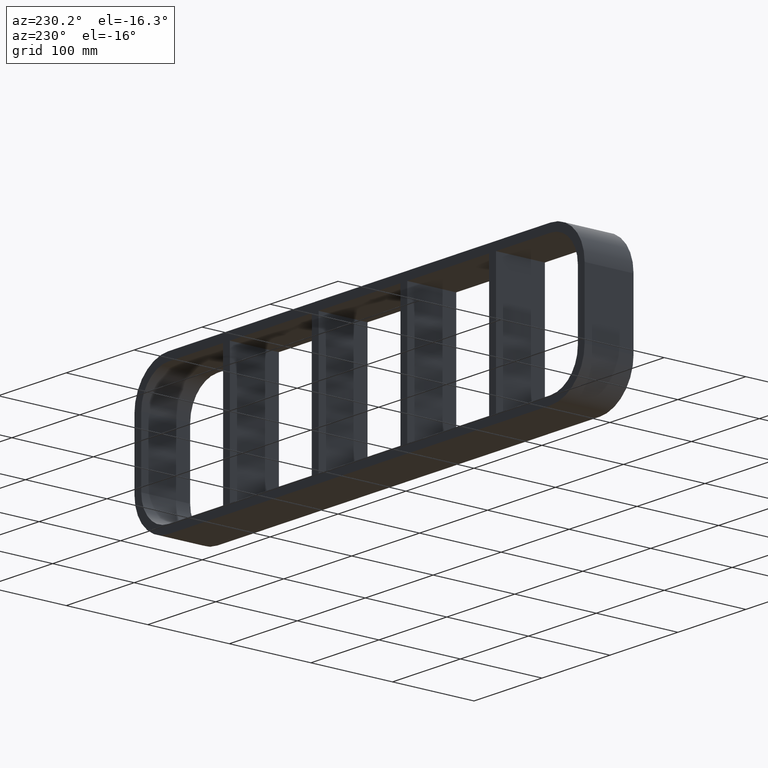
[diagram: clean part render]
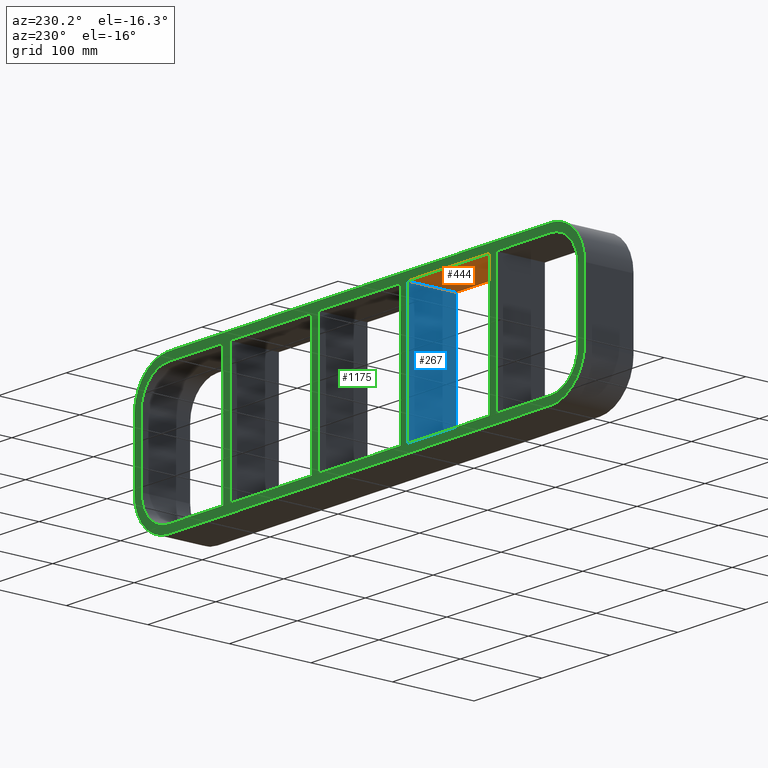
[diagram: same view with three faces highlighted in distinct colors, each labeled with its STEP entity id]
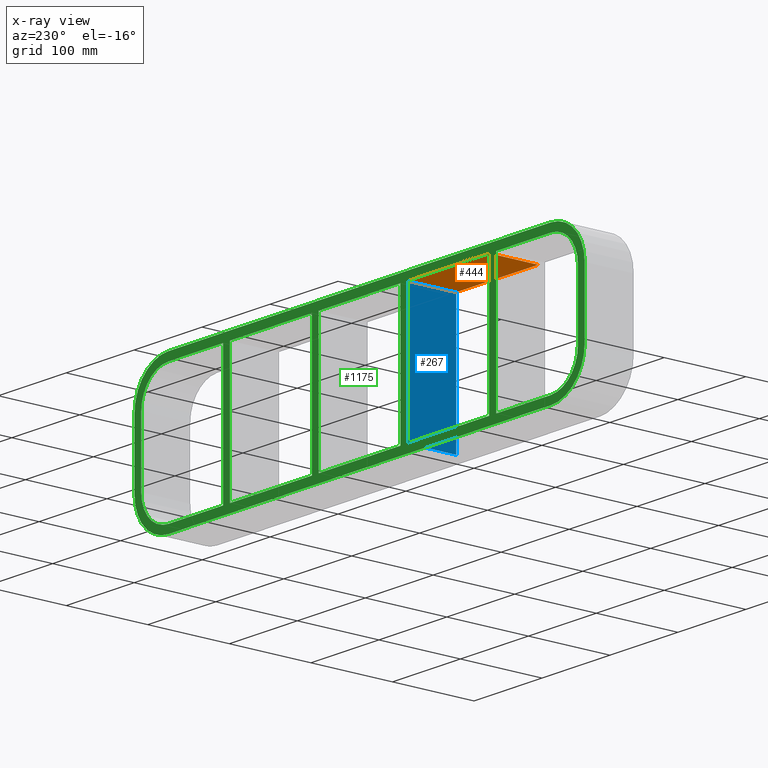
[diagram: x-ray of the same camera — body ghosted, the three highlighted faces saturated]
A machine part, auxiliary view with three faces highlighted in distinct colors.
The next image is the same camera in x-ray (body ghosted, the three faces saturated) — at least one of them is partly hidden behind the body in this view.
Their STEP definitions:

[orange] entity #444 — the highlighted planar face has unit normal (0, 0, 1).
#235=CARTESIAN_POINT('',(-70.250000000001506,-3.0,79.750000000000014));
#236=VERTEX_POINT('',#235);
#243=CARTESIAN_POINT('',(-70.250000000001506,57.0,79.750000000000014));
#244=VERTEX_POINT('',#243);
#245=CARTESIAN_POINT('',(-70.250000000001492,57.000000000000007,79.750000000000014));
#246=DIRECTION('',(0.0,-1.0,0.0));
#247=VECTOR('',#246,60.000000000000007);
#248=LINE('',#245,#247);
#249=EDGE_CURVE('',#244,#236,#248,.T.);
#414=CARTESIAN_POINT('',(-321.25,0.0,79.750000000000014));
#415=DIRECTION('',(0.0,0.0,1.0));
#416=DIRECTION('',(1.0,0.0,0.0));
#417=AXIS2_PLACEMENT_3D('',#414,#415,#416);
#418=PLANE('',#417);
#419=ORIENTED_EDGE('',*,*,#249,.T.);
#420=CARTESIAN_POINT('',(-190.75000000000728,-3.0,79.750000000000014));
#421=VERTEX_POINT('',#420);
#422=CARTESIAN_POINT('',(-190.75000000000728,-3.0,79.750000000000014));
#423=DIRECTION('',(1.0,0.0,0.0));
#424=VECTOR('',#423,120.50000000000577);
#425=LINE('',#422,#424);
#426=EDGE_CURVE('',#421,#236,#425,.T.);
#427=ORIENTED_EDGE('',*,*,#426,.F.);
#428=CARTESIAN_POINT('',(-190.75000000000728,57.0,79.750000000000014));
#429=VERTEX_POINT('',#428);
#430=CARTESIAN_POINT('',(-190.75000000000728,-3.0,79.750000000000014));
#431=DIRECTION('',(0.0,1.0,0.0));
#432=VECTOR('',#431,60.000000000000007);
#433=LINE('',#430,#432);
#434=EDGE_CURVE('',#421,#429,#433,.T.);
#435=ORIENTED_EDGE('',*,*,#434,.T.);
#436=CARTESIAN_POINT('',(-70.250000000001506,57.0,79.750000000000014));
#437=DIRECTION('',(-1.0,0.0,0.0));
#438=VECTOR('',#437,120.50000000000577);
#439=LINE('',#436,#438);
#440=EDGE_CURVE('',#244,#429,#439,.T.);
#441=ORIENTED_EDGE('',*,*,#440,.F.);
#442=EDGE_LOOP('',(#419,#427,#435,#441));
#443=FACE_OUTER_BOUND('',#442,.T.);
#444=ADVANCED_FACE('',(#443),#418,.F.);

[blue] entity #267 — the highlighted planar face has unit normal (-1, 0, 0).
#228=CARTESIAN_POINT('',(-70.250000000001506,-3.0,-79.750000000000014));
#229=DIRECTION('',(-1.0,0.0,0.0));
#230=DIRECTION('',(0.0,0.0,1.0));
#231=AXIS2_PLACEMENT_3D('',#228,#229,#230);
#232=PLANE('',#231);
#233=CARTESIAN_POINT('',(-70.250000000001506,-3.0,-79.750000000000014));
#234=VERTEX_POINT('',#233);
#235=CARTESIAN_POINT('',(-70.250000000001506,-3.0,79.750000000000014));
#236=VERTEX_POINT('',#235);
#237=CARTESIAN_POINT('',(-70.250000000001506,-3.0,-79.750000000000014));
#238=DIRECTION('',(0.0,0.0,1.0));
#239=VECTOR('',#238,159.50000000000003);
#240=LINE('',#237,#239);
#241=EDGE_CURVE('',#234,#236,#240,.T.);
#242=ORIENTED_EDGE('',*,*,#241,.T.);
#243=CARTESIAN_POINT('',(-70.250000000001506,57.0,79.750000000000014));
#244=VERTEX_POINT('',#243);
#245=CARTESIAN_POINT('',(-70.250000000001492,57.000000000000007,79.750000000000014));
#246=DIRECTION('',(0.0,-1.0,0.0));
#247=VECTOR('',#246,60.000000000000007);
#248=LINE('',#245,#247);
#249=EDGE_CURVE('',#244,#236,#248,.T.);
#250=ORIENTED_EDGE('',*,*,#249,.F.);
#251=CARTESIAN_POINT('',(-70.250000000001506,57.0,-79.750000000000014));
#252=VERTEX_POINT('',#251);
#253=CARTESIAN_POINT('',(-70.250000000001506,57.0,-79.750000000000014));
#254=DIRECTION('',(0.0,0.0,1.0));
#255=VECTOR('',#254,159.50000000000003);
#256=LINE('',#253,#255);
#257=EDGE_CURVE('',#252,#244,#256,.T.);
#258=ORIENTED_EDGE('',*,*,#257,.F.);
#259=CARTESIAN_POINT('',(-70.250000000001492,-3.0,-79.750000000000014));
#260=DIRECTION('',(0.0,1.0,0.0));
#261=VECTOR('',#260,60.000000000000007);
#262=LINE('',#259,#261);
#263=EDGE_CURVE('',#234,#252,#262,.T.);
#264=ORIENTED_EDGE('',*,*,#263,.F.);
#265=EDGE_LOOP('',(#242,#250,#258,#264));
#266=FACE_OUTER_BOUND('',#265,.T.);
#267=ADVANCED_FACE('',(#266),#232,.T.);

[green] entity #1175 — the highlighted planar face has unit normal (0, 1, 0).
#83=CARTESIAN_POINT('',(190.74999999999852,57.0,79.750000000000014));
#84=VERTEX_POINT('',#83);
#91=CARTESIAN_POINT('',(190.74999999999852,57.0,-79.750000000000014));
#92=VERTEX_POINT('',#91);
#93=CARTESIAN_POINT('',(190.74999999999852,57.0,-79.750000000000014));
#94=DIRECTION('',(0.0,0.0,1.0));
#95=VECTOR('',#94,159.50000000000003);
#96=LINE('',#93,#95);
#97=EDGE_CURVE('',#92,#84,#96,.T.);
#123=CARTESIAN_POINT('',(200.74999999999278,57.0,-79.749999999985107));
#124=VERTEX_POINT('',#123);
#131=CARTESIAN_POINT('',(200.74999999999278,57.0,79.750000000000014));
#132=VERTEX_POINT('',#131);
#133=CARTESIAN_POINT('',(200.74999999999278,57.0,79.750000000000014));
#134=DIRECTION('',(0.0,0.0,-1.0));
#135=VECTOR('',#134,159.49999999998514);
#136=LINE('',#133,#135);
#137=EDGE_CURVE('',#132,#124,#136,.T.);
#163=CARTESIAN_POINT('',(60.249999999998494,57.0,79.750000000000014));
#164=VERTEX_POINT('',#163);
#171=CARTESIAN_POINT('',(60.249999999998494,57.0,-79.750000000000014));
#172=VERTEX_POINT('',#171);
#173=CARTESIAN_POINT('',(60.249999999998494,57.0,-79.750000000000014));
#174=DIRECTION('',(0.0,0.0,1.0));
#175=VECTOR('',#174,159.50000000000003);
#176=LINE('',#173,#175);
#177=EDGE_CURVE('',#172,#164,#176,.T.);
#203=CARTESIAN_POINT('',(70.249999999992738,57.0,-79.749999999985107));
#204=VERTEX_POINT('',#203);
#211=CARTESIAN_POINT('',(70.249999999992738,57.0,79.750000000000014));
#212=VERTEX_POINT('',#211);
#213=CARTESIAN_POINT('',(70.249999999992738,57.0,79.750000000000014));
#214=DIRECTION('',(0.0,0.0,-1.0));
#215=VECTOR('',#214,159.49999999998514);
#216=LINE('',#213,#215);
#217=EDGE_CURVE('',#212,#204,#216,.T.);
#243=CARTESIAN_POINT('',(-70.250000000001506,57.0,79.750000000000014));
#244=VERTEX_POINT('',#243);
#251=CARTESIAN_POINT('',(-70.250000000001506,57.0,-79.750000000000014));
#252=VERTEX_POINT('',#251);
#253=CARTESIAN_POINT('',(-70.250000000001506,57.0,-79.750000000000014));
#254=DIRECTION('',(0.0,0.0,1.0));
#255=VECTOR('',#254,159.50000000000003);
#256=LINE('',#253,#255);
#257=EDGE_CURVE('',#252,#244,#256,.T.);
#283=CARTESIAN_POINT('',(-60.250000000007269,57.0,-79.749999999985107));
#284=VERTEX_POINT('',#283);
#291=CARTESIAN_POINT('',(-60.250000000007269,57.0,79.750000000000014));
#292=VERTEX_POINT('',#291);
#293=CARTESIAN_POINT('',(-60.250000000007269,57.0,79.750000000000014));
#294=DIRECTION('',(0.0,0.0,-1.0));
#295=VECTOR('',#294,159.49999999998514);
#296=LINE('',#293,#295);
#297=EDGE_CURVE('',#292,#284,#296,.T.);
#314=CARTESIAN_POINT('',(-190.75000000000728,57.0,-79.749999999985107));
#315=VERTEX_POINT('',#314);
#316=CARTESIAN_POINT('',(-190.75000000000728,57.0,-79.750000000000014));
#317=DIRECTION('',(1.0,0.0,0.0));
#318=VECTOR('',#317,120.50000000000577);
#319=LINE('',#316,#318);
#320=EDGE_CURVE('',#315,#252,#319,.T.);
#345=CARTESIAN_POINT('',(-60.250000000007276,57.0,-79.750000000000014));
#346=DIRECTION('',(1.0,0.0,0.0));
#347=VECTOR('',#346,120.50000000000577);
#348=LINE('',#345,#347);
#349=EDGE_CURVE('',#284,#172,#348,.T.);
#367=CARTESIAN_POINT('',(70.249999999992738,57.0,-79.750000000000014));
#368=DIRECTION('',(1.0,0.0,0.0));
#369=VECTOR('',#368,120.50000000000578);
#370=LINE('',#367,#369);
#371=EDGE_CURVE('',#204,#92,#370,.T.);
#397=CARTESIAN_POINT('',(281.25,57.0,-79.750000000000014));
#398=VERTEX_POINT('',#397);
#405=CARTESIAN_POINT('',(200.74999999999278,57.0,-79.750000000000014));
#406=DIRECTION('',(1.0,0.0,0.0));
#407=VECTOR('',#406,80.500000000007219);
#408=LINE('',#405,#407);
#409=EDGE_CURVE('',#124,#398,#408,.T.);
#428=CARTESIAN_POINT('',(-190.75000000000728,57.0,79.750000000000014));
#429=VERTEX_POINT('',#428);
#436=CARTESIAN_POINT('',(-70.250000000001506,57.0,79.750000000000014));
#437=DIRECTION('',(-1.0,0.0,0.0));
#438=VECTOR('',#437,120.50000000000577);
#439=LINE('',#436,#438);
#440=EDGE_CURVE('',#244,#429,#439,.T.);
#458=CARTESIAN_POINT('',(60.249999999998494,57.0,79.750000000000014));
#459=DIRECTION('',(-1.0,0.0,0.0));
#460=VECTOR('',#459,120.50000000000577);
#461=LINE('',#458,#460);
#462=EDGE_CURVE('',#164,#292,#461,.T.);
#473=CARTESIAN_POINT('',(281.25,57.0,79.750000000000014));
#474=VERTEX_POINT('',#473);
#475=CARTESIAN_POINT('',(281.25,57.0,79.750000000000014));
#476=DIRECTION('',(-1.0,0.0,0.0));
#477=VECTOR('',#476,80.500000000007219);
#478=LINE('',#475,#477);
#479=EDGE_CURVE('',#474,#132,#478,.T.);
#511=CARTESIAN_POINT('',(190.74999999999852,57.0,79.750000000000014));
#512=DIRECTION('',(-1.0,0.0,0.0));
#513=VECTOR('',#512,120.5000000000058);
#514=LINE('',#511,#513);
#515=EDGE_CURVE('',#84,#212,#514,.T.);
#535=CARTESIAN_POINT('',(-200.75000000000153,57.0,79.750000000000014));
#536=VERTEX_POINT('',#535);
#543=CARTESIAN_POINT('',(-200.75000000000153,57.0,-79.750000000000014));
#544=VERTEX_POINT('',#543);
#545=CARTESIAN_POINT('',(-200.75000000000153,57.0,-79.750000000000014));
#546=DIRECTION('',(0.0,0.0,1.0));
#547=VECTOR('',#546,159.50000000000003);
#548=LINE('',#545,#547);
#549=EDGE_CURVE('',#544,#536,#548,.T.);
#572=CARTESIAN_POINT('',(-190.75000000000728,57.0,79.750000000000014));
#573=DIRECTION('',(0.0,0.0,-1.0));
#574=VECTOR('',#573,159.49999999998514);
#575=LINE('',#572,#574);
#576=EDGE_CURVE('',#429,#315,#575,.T.);
#588=CARTESIAN_POINT('',(-281.25,57.0,-79.750000000000014));
#589=VERTEX_POINT('',#588);
#590=CARTESIAN_POINT('',(-281.25,57.0,-79.750000000000014));
#591=DIRECTION('',(1.0,0.0,0.0));
#592=VECTOR('',#591,80.499999999998465);
#593=LINE('',#590,#592);
#594=EDGE_CURVE('',#589,#544,#593,.T.);
#627=CARTESIAN_POINT('',(-281.25,57.0,79.750000000000014));
#628=VERTEX_POINT('',#627);
#635=CARTESIAN_POINT('',(-200.75000000000153,57.0,79.750000000000014));
#636=DIRECTION('',(-1.0,0.0,0.0));
#637=VECTOR('',#636,80.499999999998465);
#638=LINE('',#635,#637);
#639=EDGE_CURVE('',#536,#628,#638,.T.);
#649=CARTESIAN_POINT('',(281.25,57.0,-89.750000000000014));
#650=VERTEX_POINT('',#649);
#651=CARTESIAN_POINT('',(331.25,57.0,-39.750000000000014));
#652=VERTEX_POINT('',#651);
#653=CARTESIAN_POINT('',(281.25,57.0,-39.750000000000014));
#654=DIRECTION('',(0.0,-1.0,0.0));
#655=DIRECTION('',(0.707106781186547,0.0,-0.707106781186547));
#656=AXIS2_PLACEMENT_3D('',#653,#654,#655);
#657=CIRCLE('',#656,49.999999999999986);
#658=EDGE_CURVE('',#650,#652,#657,.T.);
#834=CARTESIAN_POINT('',(331.25,57.0,39.750000000000014));
#835=VERTEX_POINT('',#834);
#836=CARTESIAN_POINT('',(331.25,57.0,39.750000000000014));
#837=DIRECTION('',(0.0,0.0,-1.0));
#838=VECTOR('',#837,79.500000000000028);
#839=LINE('',#836,#838);
#840=EDGE_CURVE('',#835,#652,#839,.T.);
#859=CARTESIAN_POINT('',(281.25,57.0,89.750000000000014));
#860=VERTEX_POINT('',#859);
#861=CARTESIAN_POINT('',(281.25,57.0,39.750000000000014));
#862=DIRECTION('',(0.0,-1.0,0.0));
#863=DIRECTION('',(0.707106781186547,0.0,0.707106781186547));
#864=AXIS2_PLACEMENT_3D('',#861,#862,#863);
#865=CIRCLE('',#864,49.999999999999986);
#866=EDGE_CURVE('',#835,#860,#865,.T.);
#882=CARTESIAN_POINT('',(-331.25,57.0,-39.750000000000014));
#883=VERTEX_POINT('',#882);
#884=CARTESIAN_POINT('',(-281.25,57.0,-89.750000000000014));
#885=VERTEX_POINT('',#884);
#886=CARTESIAN_POINT('',(-281.25,57.0,-39.750000000000014));
#887=DIRECTION('',(0.0,-1.0,0.0));
#888=DIRECTION('',(-0.707106781186547,0.0,-0.707106781186547));
#889=AXIS2_PLACEMENT_3D('',#886,#887,#888);
#890=CIRCLE('',#889,49.999999999999986);
#891=EDGE_CURVE('',#883,#885,#890,.T.);
#916=CARTESIAN_POINT('',(-331.25,57.0,39.750000000000014));
#917=VERTEX_POINT('',#916);
#924=CARTESIAN_POINT('',(-331.25,57.0,-39.750000000000014));
#925=DIRECTION('',(0.0,0.0,1.0));
#926=VECTOR('',#925,79.500000000000028);
#927=LINE('',#924,#926);
#928=EDGE_CURVE('',#883,#917,#927,.T.);
#938=CARTESIAN_POINT('',(-281.25,57.0,89.750000000000014));
#939=VERTEX_POINT('',#938);
#940=CARTESIAN_POINT('',(-281.25,57.0,39.750000000000014));
#941=DIRECTION('',(0.0,-1.0,0.0));
#942=DIRECTION('',(-0.707106781186547,0.0,0.707106781186547));
#943=AXIS2_PLACEMENT_3D('',#940,#941,#942);
#944=CIRCLE('',#943,49.999999999999986);
#945=EDGE_CURVE('',#939,#917,#944,.T.);
#964=CARTESIAN_POINT('',(-281.25,57.0,89.750000000000014));
#965=DIRECTION('',(1.0,0.0,0.0));
#966=VECTOR('',#965,562.5);
#967=LINE('',#964,#966);
#968=EDGE_CURVE('',#939,#860,#967,.T.);
#981=CARTESIAN_POINT('',(-321.25,57.0,39.750000000000014));
#982=VERTEX_POINT('',#981);
#989=CARTESIAN_POINT('',(-281.25,57.0,39.750000000000014));
#990=DIRECTION('',(0.0,1.0,0.0));
#991=DIRECTION('',(-0.707106781186547,0.0,0.707106781186547));
#992=AXIS2_PLACEMENT_3D('',#989,#990,#991);
#993=CIRCLE('',#992,39.999999999999993);
#994=EDGE_CURVE('',#982,#628,#993,.T.);
#1007=CARTESIAN_POINT('',(-321.25,57.0,-39.750000000000014));
#1008=VERTEX_POINT('',#1007);
#1015=CARTESIAN_POINT('',(-321.25,57.0,39.750000000000021));
#1016=DIRECTION('',(0.0,0.0,-1.0));
#1017=VECTOR('',#1016,79.500000000000028);
#1018=LINE('',#1015,#1017);
#1019=EDGE_CURVE('',#982,#1008,#1018,.T.);
#1031=CARTESIAN_POINT('',(321.25,57.0,39.750000000000014));
#1032=VERTEX_POINT('',#1031);
#1033=CARTESIAN_POINT('',(281.25,57.0,39.750000000000014));
#1034=DIRECTION('',(0.0,1.0,0.0));
#1035=DIRECTION('',(0.707106781186547,0.0,0.707106781186547));
#1036=AXIS2_PLACEMENT_3D('',#1033,#1034,#1035);
#1037=CIRCLE('',#1036,39.999999999999993);
#1038=EDGE_CURVE('',#474,#1032,#1037,.T.);
#1056=CARTESIAN_POINT('',(-281.25,57.0,-39.750000000000014));
#1057=DIRECTION('',(0.0,1.0,0.0));
#1058=DIRECTION('',(-0.707106781186547,0.0,-0.707106781186547));
#1059=AXIS2_PLACEMENT_3D('',#1056,#1057,#1058);
#1060=CIRCLE('',#1059,39.999999999999993);
#1061=EDGE_CURVE('',#589,#1008,#1060,.T.);
#1072=CARTESIAN_POINT('',(321.25,57.0,-39.750000000000014));
#1073=VERTEX_POINT('',#1072);
#1074=CARTESIAN_POINT('',(281.25,57.0,-39.750000000000014));
#1075=DIRECTION('',(0.0,1.0,0.0));
#1076=DIRECTION('',(0.707106781186547,0.0,-0.707106781186547));
#1077=AXIS2_PLACEMENT_3D('',#1074,#1075,#1076);
#1078=CIRCLE('',#1077,39.999999999999993);
#1079=EDGE_CURVE('',#1073,#398,#1078,.T.);
#1098=CARTESIAN_POINT('',(321.25,57.0,-39.750000000000021));
#1099=DIRECTION('',(0.0,0.0,1.0));
#1100=VECTOR('',#1099,79.500000000000028);
#1101=LINE('',#1098,#1100);
#1102=EDGE_CURVE('',#1073,#1032,#1101,.T.);
#1117=CARTESIAN_POINT('',(281.25,57.0,-89.750000000000014));
#1118=DIRECTION('',(-1.0,0.0,0.0));
#1119=VECTOR('',#1118,562.5);
#1120=LINE('',#1117,#1119);
#1121=EDGE_CURVE('',#650,#885,#1120,.T.);
#1126=CARTESIAN_POINT('',(0.0,57.0,0.0));
#1127=DIRECTION('',(0.0,1.0,0.0));
#1128=DIRECTION('',(0.0,0.0,1.0));
#1129=AXIS2_PLACEMENT_3D('',#1126,#1127,#1128);
#1130=PLANE('',#1129);
#1131=ORIENTED_EDGE('',*,*,#658,.F.);
#1132=ORIENTED_EDGE('',*,*,#1121,.T.);
#1133=ORIENTED_EDGE('',*,*,#891,.F.);
#1134=ORIENTED_EDGE('',*,*,#928,.T.);
#1135=ORIENTED_EDGE('',*,*,#945,.F.);
#1136=ORIENTED_EDGE('',*,*,#968,.T.);
#1137=ORIENTED_EDGE('',*,*,#866,.F.);
#1138=ORIENTED_EDGE('',*,*,#840,.T.);
#1139=EDGE_LOOP('',(#1131,#1132,#1133,#1134,#1135,#1136,#1137,#1138));
#1140=FACE_OUTER_BOUND('',#1139,.T.);
#1141=ORIENTED_EDGE('',*,*,#409,.T.);
#1142=ORIENTED_EDGE('',*,*,#1079,.F.);
#1143=ORIENTED_EDGE('',*,*,#1102,.T.);
#1144=ORIENTED_EDGE('',*,*,#1038,.F.);
#1145=ORIENTED_EDGE('',*,*,#479,.T.);
#1146=ORIENTED_EDGE('',*,*,#137,.T.);
#1147=EDGE_LOOP('',(#1141,#1142,#1143,#1144,#1145,#1146));
#1148=FACE_BOUND('',#1147,.T.);
#1149=ORIENTED_EDGE('',*,*,#97,.T.);
#1150=ORIENTED_EDGE('',*,*,#515,.T.);
#1151=ORIENTED_EDGE('',*,*,#217,.T.);
#1152=ORIENTED_EDGE('',*,*,#371,.T.);
#1153=EDGE_LOOP('',(#1149,#1150,#1151,#1152));
#1154=FACE_BOUND('',#1153,.T.);
#1155=ORIENTED_EDGE('',*,*,#177,.T.);
#1156=ORIENTED_EDGE('',*,*,#462,.T.);
#1157=ORIENTED_EDGE('',*,*,#297,.T.);
#1158=ORIENTED_EDGE('',*,*,#349,.T.);
#1159=EDGE_LOOP('',(#1155,#1156,#1157,#1158));
#1160=FACE_BOUND('',#1159,.T.);
#1161=ORIENTED_EDGE('',*,*,#257,.T.);
#1162=ORIENTED_EDGE('',*,*,#440,.T.);
#1163=ORIENTED_EDGE('',*,*,#576,.T.);
#1164=ORIENTED_EDGE('',*,*,#320,.T.);
#1165=EDGE_LOOP('',(#1161,#1162,#1163,#1164));
#1166=FACE_BOUND('',#1165,.T.);
#1167=ORIENTED_EDGE('',*,*,#549,.T.);
#1168=ORIENTED_EDGE('',*,*,#639,.T.);
#1169=ORIENTED_EDGE('',*,*,#994,.F.);
#1170=ORIENTED_EDGE('',*,*,#1019,.T.);
#1171=ORIENTED_EDGE('',*,*,#1061,.F.);
#1172=ORIENTED_EDGE('',*,*,#594,.T.);
#1173=EDGE_LOOP('',(#1167,#1168,#1169,#1170,#1171,#1172));
#1174=FACE_BOUND('',#1173,.T.);
#1175=ADVANCED_FACE('',(#1140,#1148,#1154,#1160,#1166,#1174),#1130,.T.);